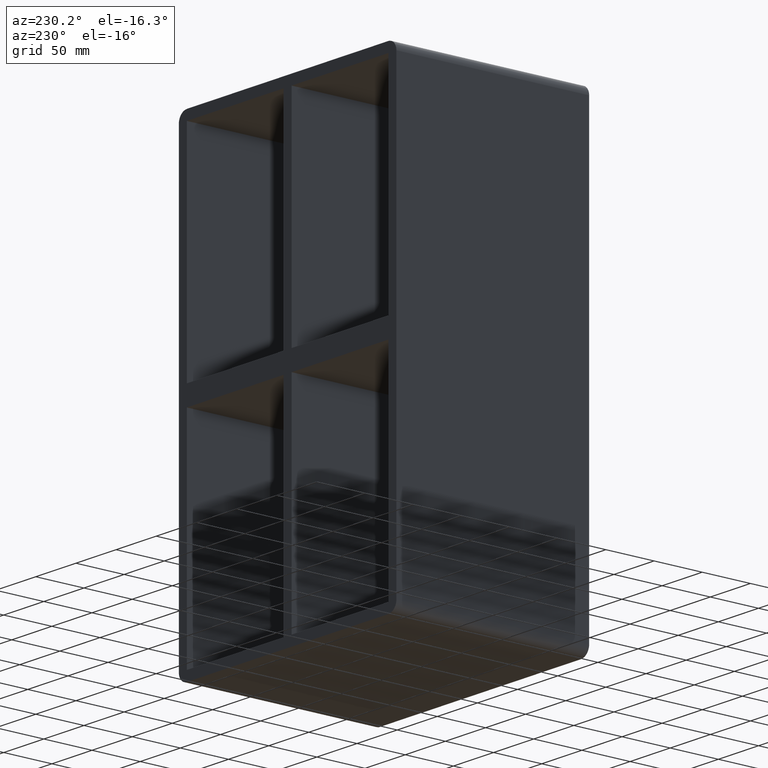
[diagram: clean part render]
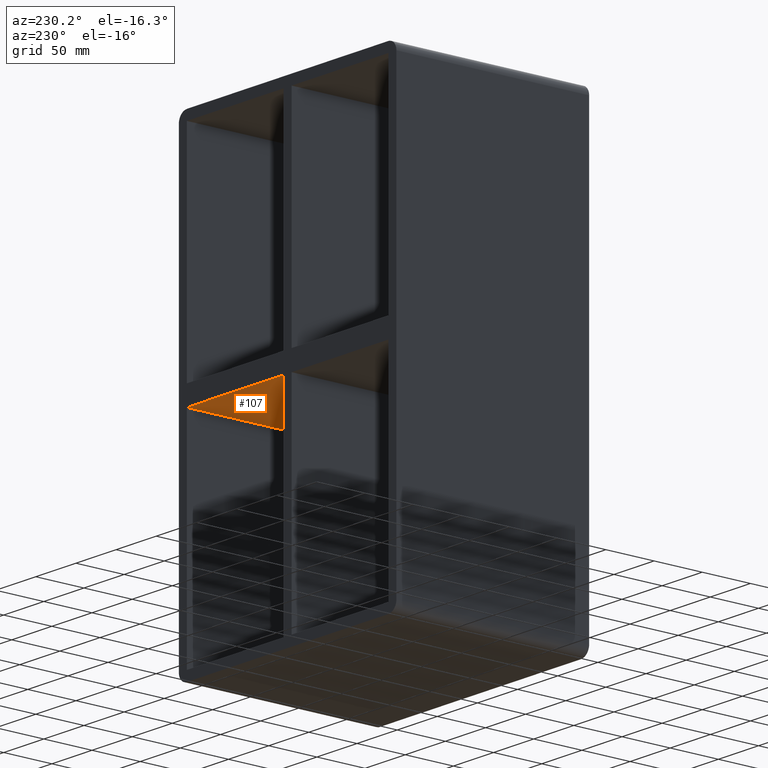
[diagram: same view with one face highlighted and labeled with its STEP entity id]
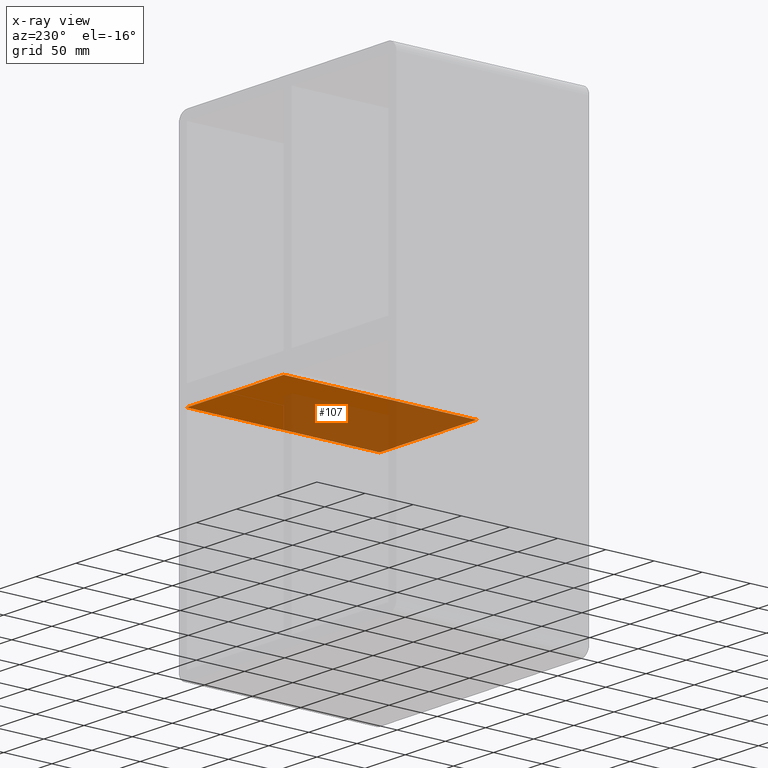
[diagram: x-ray of the same camera — body ghosted, the highlighted face saturated]
A machine part, auxiliary view. The second image highlights one B-rep face of the part: STEP entity #107.
The next image is the same camera in x-ray: the body ghosted, the highlighted face saturated — about 59% of this face is hidden behind the body in this view.
In plain terms, the highlighted planar face has unit normal (0, 0, -1).
Its self-contained STEP definition (entity closure, byte-faithful):
#68=CARTESIAN_POINT('',(125.49999999999272,-3.0,-10.000000000017968));
#69=DIRECTION('',(0.0,0.0,-1.0));
#70=DIRECTION('',(-1.0,0.0,0.0));
#71=AXIS2_PLACEMENT_3D('',#68,#69,#70);
#72=PLANE('',#71);
#73=CARTESIAN_POINT('',(5.0,197.0,-10.000000000017939));
#74=VERTEX_POINT('',#73);
#75=CARTESIAN_POINT('',(5.0,-3.0,-10.000000000017939));
#76=VERTEX_POINT('',#75);
#77=CARTESIAN_POINT('',(5.0,197.0,-10.000000000017943));
#78=DIRECTION('',(0.0,-1.0,0.0));
#79=VECTOR('',#78,200.0);
#80=LINE('',#77,#79);
#81=EDGE_CURVE('',#74,#76,#80,.T.);
#82=ORIENTED_EDGE('',*,*,#81,.F.);
#83=CARTESIAN_POINT('',(125.49999999999274,197.0,-10.000000000017968));
#84=VERTEX_POINT('',#83);
#85=CARTESIAN_POINT('',(125.49999999999272,197.0,-10.000000000017968));
#86=DIRECTION('',(-1.0,0.0,0.0));
#87=VECTOR('',#86,120.49999999999272);
#88=LINE('',#85,#87);
#89=EDGE_CURVE('',#84,#74,#88,.T.);
#90=ORIENTED_EDGE('',*,*,#89,.F.);
#91=CARTESIAN_POINT('',(125.49999999999272,-3.0,-10.000000000017968));
#92=VERTEX_POINT('',#91);
#93=CARTESIAN_POINT('',(125.5,-3.0,-10.000000000017977));
#94=DIRECTION('',(0.0,1.0,0.0));
#95=VECTOR('',#94,199.99999999999997);
#96=LINE('',#93,#95);
#97=EDGE_CURVE('',#92,#84,#96,.T.);
#98=ORIENTED_EDGE('',*,*,#97,.F.);
#99=CARTESIAN_POINT('',(125.49999999999272,-3.0,-10.000000000017968));
#100=DIRECTION('',(-1.0,0.0,0.0));
#101=VECTOR('',#100,120.49999999999272);
#102=LINE('',#99,#101);
#103=EDGE_CURVE('',#92,#76,#102,.T.);
#104=ORIENTED_EDGE('',*,*,#103,.T.);
#105=EDGE_LOOP('',(#82,#90,#98,#104));
#106=FACE_OUTER_BOUND('',#105,.T.);
#107=ADVANCED_FACE('',(#106),#72,.T.);